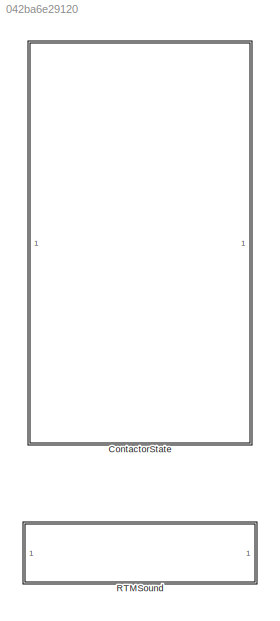
MODEL slx_042ba6e29120
KIND library
CONFIG AbsTol = auto
CONFIG EnableMultiTasking = off
CONFIG FixedStep = auto
CONFIG MaxStep = auto
CONFIG MinStep = auto
CONFIG RelTol = 1e-3
CONFIG SampleTimeConstraint = Unconstrained
CONFIG SolverName = VariableStepAuto
CONFIG StartTime = 0.0
CONFIG StopTime = 10.0
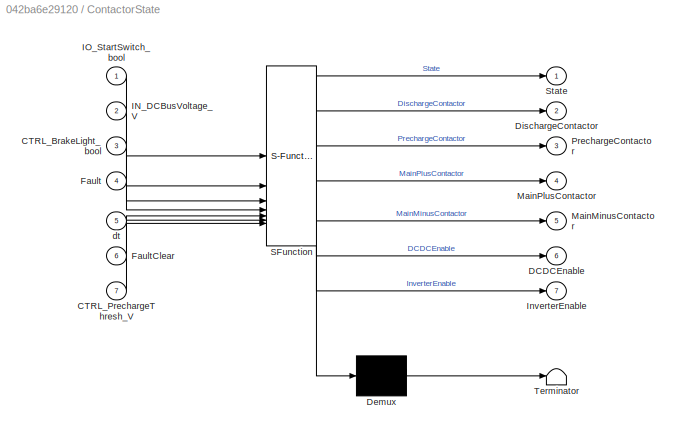
BLOCK [SubSystem] ContactorState
  ErrorFcn = Stateflow.Translate.translate
  PermitHierarchicalResolution = ExplicitOnly
  SFBlockType = Chart
  TreatAsAtomicUnit = on
BLOCK [Demux] ContactorState/ Demux 
  Outputs = 1
BLOCK [S-Function] ContactorState/ SFunction 
  EnableBusSupport = off
  FunctionName = sf_sfun
  PortCounts = [7 8]
  SFcnIsStateOwnerBlock = off
  SFunctionDeploymentMode = off
  Tag = Stateflow S-Function 3
BLOCK [Terminator] ContactorState/ Terminator 
BLOCK [Inport] ContactorState/CTRL_BrakeLight_bool
  Port = 3
BLOCK [Inport] ContactorState/CTRL_PrechargeThresh_V
  Port = 7
BLOCK [Outport] ContactorState/DCDCEnable
  Port = 6
BLOCK [Outport] ContactorState/DischargeContactor
  Port = 2
BLOCK [Inport] ContactorState/Fault
  Port = 4
BLOCK [Inport] ContactorState/FaultClear
  Port = 6
BLOCK [Inport] ContactorState/IN_DCBusVoltage_V
  Port = 2
BLOCK [Inport] ContactorState/IO_StartSwitch_bool
BLOCK [Outport] ContactorState/InverterEnable
  Port = 7
BLOCK [Outport] ContactorState/MainMinusContactor
  Port = 5
BLOCK [Outport] ContactorState/MainPlusContactor
  Port = 4
BLOCK [Outport] ContactorState/PrechargeContactor
  Port = 3
BLOCK [Outport] ContactorState/State
BLOCK [Inport] ContactorState/dt
  Port = 5
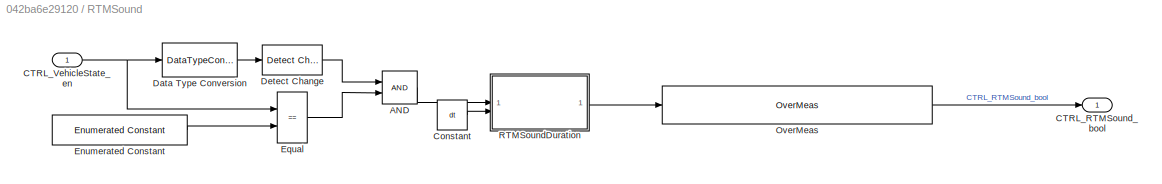
BLOCK [SubSystem] RTMSound
BLOCK [Logic] RTMSound/AND
  AllPortsSameDT = off
  OutDataTypeStr = boolean
BLOCK [Outport] RTMSound/CTRL_RTMSound_bool
BLOCK [Inport] RTMSound/CTRL_VehicleState_en
BLOCK [Constant] RTMSound/Constant
  Value = dt
BLOCK [DataTypeConversion] RTMSound/Data Type Conversion
  OutDataTypeStr = uint8
  RndMeth = Floor
  SaturateOnIntegerOverflow = off
BLOCK [Reference] RTMSound/Detect Change  REF=simulink/Logic and Bit
Operations/Detect
Change
  SourceBlock = simulink/Logic and Bit\nOperations/Detect\nChange
  SourceType = Detect Change
BLOCK [Reference] RTMSound/Enumerated Constant  REF=simulink/Sources/Enumerated
Constant
  SourceBlock = simulink/Sources/Enumerated\nConstant
  SourceType = Enumerated Constant
BLOCK [RelationalOperator] RTMSound/Equal
  InputSameDT = off
  Operator = ==
  OutDataTypeStr = boolean
  RndMeth = Simplest
BLOCK [Reference] RTMSound/OverMeas  REF=Utilities/OverMeas
  SourceBlock = Utilities/OverMeas
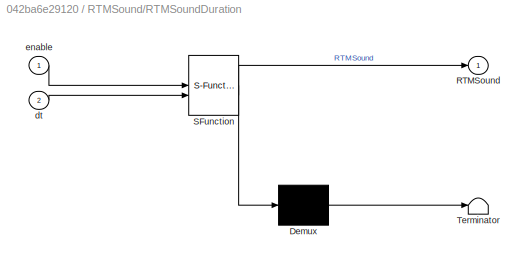
BLOCK [SubSystem] RTMSound/RTMSoundDuration
  ErrorFcn = Stateflow.Translate.translate
  PermitHierarchicalResolution = ExplicitOnly
  SFBlockType = Chart
  TreatAsAtomicUnit = on
BLOCK [Demux] RTMSound/RTMSoundDuration/ Demux 
  Outputs = 1
BLOCK [S-Function] RTMSound/RTMSoundDuration/ SFunction 
  EnableBusSupport = off
  FunctionName = sf_sfun
  PortCounts = [2 2]
  SFcnIsStateOwnerBlock = off
  SFunctionDeploymentMode = off
  Tag = Stateflow S-Function 2
BLOCK [Terminator] RTMSound/RTMSoundDuration/ Terminator 
BLOCK [Outport] RTMSound/RTMSoundDuration/RTMSound
BLOCK [Inport] RTMSound/RTMSoundDuration/dt
  Port = 2
BLOCK [Inport] RTMSound/RTMSoundDuration/enable
LINE RTMSound/AND:1 -> RTMSound/RTMSoundDuration:1
NET RTMSound/CTRL_VehicleState_en:1 -> RTMSound/Data Type Conversion:1, RTMSound/Equal:1
LINE RTMSound/Constant:1 -> RTMSound/RTMSoundDuration:2
LINE RTMSound/Data Type Conversion:1 -> RTMSound/Detect Change:1
LINE RTMSound/Detect Change:1 -> RTMSound/AND:1
LINE RTMSound/Enumerated Constant:1 -> RTMSound/Equal:2
LINE RTMSound/Equal:1 -> RTMSound/AND:2
LINE RTMSound/OverMeas:1 -> RTMSound/CTRL_RTMSound_bool:1
LINE RTMSound/RTMSoundDuration:1 -> RTMSound/OverMeas:1
note: NET lines group one-source signal fan-out (src -> all destinations, sorted); 1:1 wires keep LINE
CHART RTMSound/RTMSoundDuration states=2 transitions=3
  STATE_LABEL 'RTMSoundStop\nen:\nRTMSound = false;\ntimer = 0;\n'
  STATE_LABEL 'RTMSoundStart\nen:\nRTMSound = true;\ndu:\ntimer = timer + dt;\n'
CHART ContactorState states=22 transitions=26
  STATE_LABEL 'Normal\n'
  STATE_LABEL 'Precharge'
  STATE_LABEL 'StartDelay\nen:\ntimer = 0;\nState = VehicleState.StartDelay;\ndu:\ntimer = timer + dt;'
  STATE_LABEL 'if there is already accumulator voltage present before even actuating the contactors, then a contactor has been welded'
  STATE_LABEL 'PrechargeReady\n% waiting for tractive system switch signal\nen:\nState = VehicleState.PrechargeReady;\nMainPlusContactor = ContactorState.Open;\nMainMinusContactor = ContactorState.Open;\nPrechargeContactor = ContactorState.Open;\nDischargeContactor = ContactorState.Close;\nDCDCEnable = DCDCStatus.Off;\nInverterEnable = InverterStatus.Off;\ntimer = 0;\ndu:\ntimer = timer + dt;'
  STATE_LABEL 'about 1 sec to discharge to 60V'
  STATE_LABEL 'PrechargeBegin\nen:\nState = VehicleState.Precharge;'
  STATE_LABEL 'DischargeDisable\nen:\nDischargeContactor = ContactorState.Open;\ntimer = 0;\ndu:\ntimer = timer + dt;\n'
  STATE_LABEL 'PrechargeEnable\nen:\nPrechargeContactor = ContactorState.Close;\ntimer = 0;\ndu:\ntimer = timer + dt;\n'
  STATE_LABEL 'MainMinusEnable\nen:\nMainMinusContactor = ContactorState.Close;\ntimer = 0;\ndu:\ntimer = timer + dt;'
  STATE_LABEL '[timer >  50]'
  STATE_LABEL '[timer >  50]'
  STATE_LABEL 'PrechargeTimeout\n% timed out, retry\nen:\nState = VehicleState.PrechargeTimeout\nMainPlusContactor = ContactorState.Open;\nMainMinusContactor = ContactorState.Open;\nPrechargeContactor = ContactorState.Open;\nDischargeContactor = ContactorState.Close;\nDCDCEnable = DCDCStatus.Off;\nInverterEnable = InverterStatus.Off;\ntimer = 0;\ndu:\ntimer = timer + dt;\n'
  STATE_LABEL 'change to something else -- this is just for testing'
  STATE_LABEL 'PrechargeWait\n% after closing the contactor, start the precharge timer\ndu:\ntimer = timer + dt;\n'
  STATE_LABEL 'PrechargeComplete\nen:\nState = VehicleState.PrechargeComplete;\ntimer = 0;'
  STATE_LABEL '[timer >  500 ...\n&& Fault == false]'
  STATE_LABEL '[timer >  500]'
  STATE_LABEL '[timer > 50]'
  STATE_LABEL '[timer >  50]'
  STATE_LABEL '[timer >  15000]'
  STATE_LABEL '[IN_DCBusVoltage_V > CTRL_PrechargeThresh_V]'
  STATE_LABEL 'ReadyToMove'
  STATE_LABEL 'RTM\nen:\nState = VehicleState.ReadyToMove;\n'
  STATE_LABEL 'PrechargeDisable\nen:\nPrechargeContactor = ContactorState.Open;\ntimer = 0;\ndu:\ntimer = timer + dt;'
  STATE_LABEL 'MainPlusEnable\nen:\nMainPlusContactor = ContactorState.Close;\ntimer = 0;\ndu:\ntimer = timer + dt;'
  STATE_LABEL 'SpinUp\nen:\nInverterEnable = InverterStatus.On;\nDCDCEnable = DCDCStatus.On;\ntimer = 0;\n'
  STATE_LABEL '[timer > 50]'
  STATE_LABEL '[timer > 50]'
  STATE_LABEL 'Standby\n% wait for all conditions to be satisfied\nen:\nState = VehicleState.Standby;\ndu:\ntimer = timer + dt;\n'
  STATE_LABEL '[DischargeContactor == ContactorState.Open ... \n&& PrechargeContactor == ContactorState.Close ...\n&& MainMinusContactor == ContactorState.Close ...\n&& CTRL_BrakeLight_bool == true ...\n&& IO_StartSwitch_bool == true]'
  STATE_LABEL '[DischargeContactor == ContactorState.Open ...\n&& MainMinusContactor == ContactorState.Close]'
  STATE_LABEL 'Precharge'
  STATE_LABEL 'StartDelay\nen:\ntimer = 0;\nState = VehicleState.StartDelay;\ndu:\ntimer = timer + dt;'
  STATE_LABEL 'if there is already accumulator voltage present before even actuating the contactors, then a contactor has been welded'
  STATE_LABEL 'PrechargeReady\n% waiting for tractive system switch signal\nen:\nState = VehicleState.PrechargeReady;\nMainPlusContactor = ContactorState.Open;\nMainMinusContactor = ContactorState.Open;\nPrechargeContactor = ContactorState.Open;\nDischargeContactor = ContactorState.Close;\nDCDCEnable = DCDCStatus.Off;\nInverterEnable = InverterStatus.Off;\ntimer = 0;\ndu:\ntimer = timer + dt;'
  STATE_LABEL 'about 1 sec to discharge to 60V'
  STATE_LABEL 'PrechargeBegin\nen:\nState = VehicleState.Precharge;'
  STATE_LABEL 'DischargeDisable\nen:\nDischargeContactor = ContactorState.Open;\ntimer = 0;\ndu:\ntimer = timer + dt;\n'
  STATE_LABEL 'PrechargeEnable\nen:\nPrechargeContactor = ContactorState.Close;\ntimer = 0;\ndu:\ntimer = timer + dt;\n'
CHART  states=0 transitions=0
CHART  states=0 transitions=0
